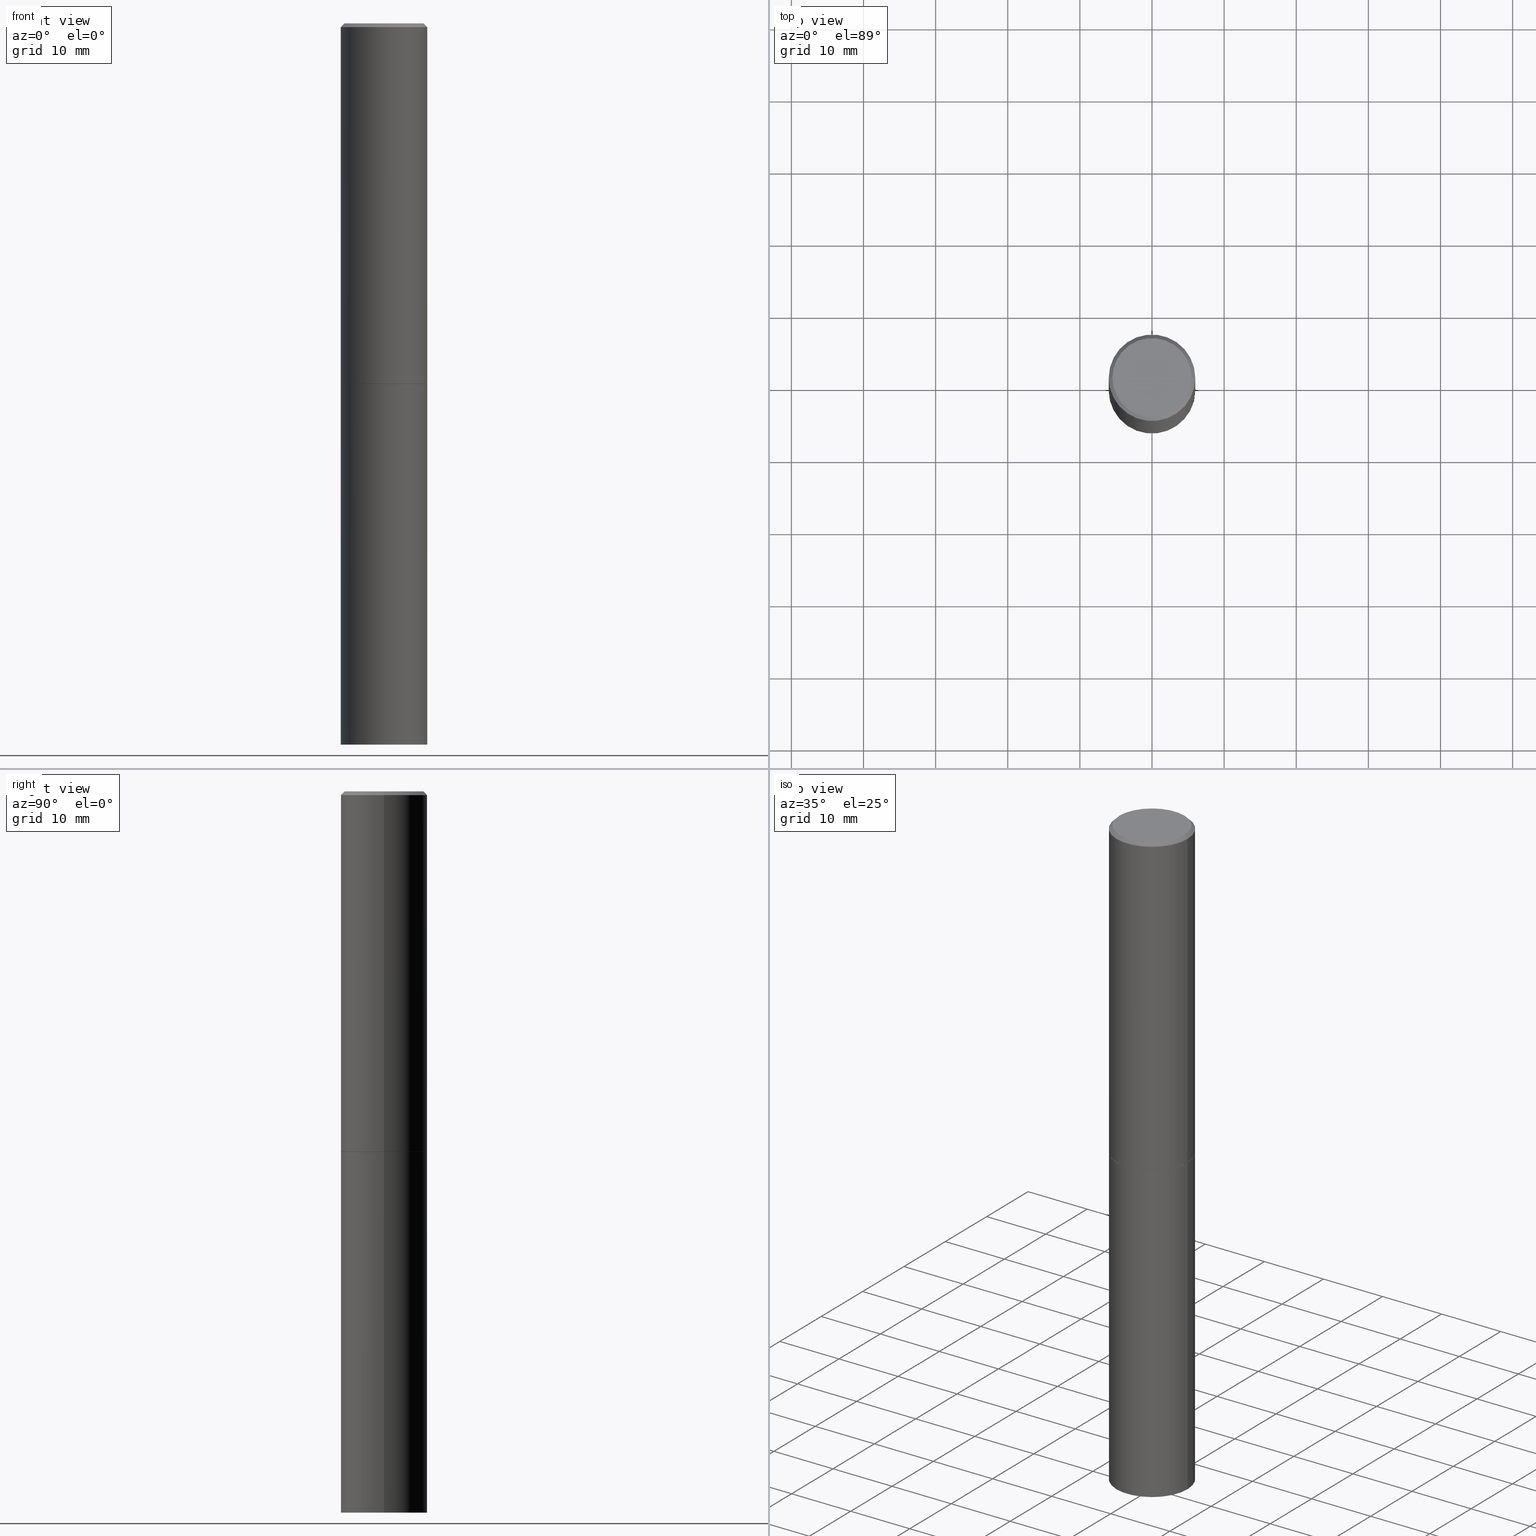
[diagram: canonical four-view strip — front | top / right | iso, engineering-drawing reading convention]
A machine part, canonical four-view strip (front | top / right | iso — engineering-drawing reading convention). The complete STEP part file that produces these views, byte-faithful:
ISO-10303-21;
HEADER;
FILE_DESCRIPTION (( 'STEP AP203' ),
    '1' );
FILE_NAME ('49433.STEP',
    '2024-02-28T20:46:06',
    ( '' ),
    ( '' ),
    'SwSTEP 2.0',
    'SolidWorks 2023',
    '' );
FILE_SCHEMA (( 'CONFIG_CONTROL_DESIGN' ));
ENDSEC;

DATA;
#1 = EDGE_LOOP ( 'NONE', ( #299, #39, #294, #66 ) ) ;
#2 = CLOSED_SHELL ( 'NONE', ( #72, #366, #238, #206, #120, #87, #78, #269 ) ) ;
#3 = PERSON_AND_ORGANIZATION_ROLE ( 'design_owner' ) ;
#4 = CC_DESIGN_APPROVAL ( #278, ( #134 ) ) ;
#5 = LOCAL_TIME ( 15, 46, 6.000000000000000000, #12 ) ;
#6 = FACE_OUTER_BOUND ( 'NONE', #196, .T. ) ;
#7 = CARTESIAN_POINT ( 'NONE',  ( 4.813905344975441835E-29, -6.872981015512731707E-15, -1.968500000000000139 ) ) ;
#8 =( NAMED_UNIT ( * ) SI_UNIT ( $, .STERADIAN. ) SOLID_ANGLE_UNIT ( ) );
#9 = ORIENTED_EDGE ( 'NONE', *, *, #255, .T. ) ;
#10 = DIRECTION ( 'NONE',  ( 1.000000000000000000, 0.000000000000000000, 0.000000000000000000 ) ) ;
#11 = AXIS2_PLACEMENT_3D ( 'NONE', #192, #164, #10 ) ;
#12 = COORDINATED_UNIVERSAL_TIME_OFFSET ( 5, 0, .BEHIND. ) ;
#13 = VERTEX_POINT ( 'NONE', #242 ) ;
#14 = COORDINATED_UNIVERSAL_TIME_OFFSET ( 5, 0, .BEHIND. ) ;
#15 = EDGE_LOOP ( 'NONE', ( #221, #351, #231, #159 ) ) ;
#16 = LOCAL_TIME ( 15, 46, 6.000000000000000000, #337 ) ;
#17 = CARTESIAN_POINT ( 'NONE',  ( 4.890937612370292426E-31, -6.982962677686317493E-17, -0.02000000000000007674 ) ) ;
#18 = ORIENTED_EDGE ( 'NONE', *, *, #99, .T. ) ;
#19 = DATE_AND_TIME ( #121, #348 ) ;
#20 = CARTESIAN_POINT ( 'NONE',  ( 0.2361999999999999933, -8.518865318643383648E-15, -1.967500000000000027 ) ) ;
#21 = EDGE_LOOP ( 'NONE', ( #9, #143 ) ) ;
#22 =( GEOMETRIC_REPRESENTATION_CONTEXT ( 3 ) GLOBAL_UNCERTAINTY_ASSIGNED_CONTEXT ( ( #33 ) ) GLOBAL_UNIT_ASSIGNED_CONTEXT ( ( #137, #139, #8 ) ) REPRESENTATION_CONTEXT ( 'NONE', 'WORKASPACE' ) );
#23 = PRODUCT_DEFINITION ( 'UNKNOWN', '', #290, #364 ) ;
#24 = DIRECTION ( 'NONE',  ( 0.7071067811865232589, -2.468850131082003836E-15, 0.7071067811865715536 ) ) ;
#25 = DIRECTION ( 'NONE',  ( 2.445468806185136597E-29, -3.491481338843145583E-15, -1.000000000000000000 ) ) ;
#26 = CLOSED_SHELL ( 'NONE', ( #55, #198, #321, #144 ) ) ;
#27 = LINE ( 'NONE', #359, #327 ) ;
#28 = ORIENTED_EDGE ( 'NONE', *, *, #288, .F. ) ;
#29 = CONICAL_SURFACE ( 'NONE', #296, 0.2351999999999999924, 0.7853981633974141952 ) ;
#30 = COORDINATED_UNIVERSAL_TIME_OFFSET ( 5, 0, .BEHIND. ) ;
#31 = VECTOR ( 'NONE', #276, 39.37007874015748143 ) ;
#32 = DIRECTION ( 'NONE',  ( -2.445468806185136597E-29, 3.491481338843145583E-15, 1.000000000000000000 ) ) ;
#33 = UNCERTAINTY_MEASURE_WITH_UNIT (LENGTH_MEASURE( 1.000000000000000082E-05 ), #137, 'distance_accuracy_value', 'NONE');
#34 = CYLINDRICAL_SURFACE ( 'NONE', #153, 0.2361999999999998545 ) ;
#35 = CARTESIAN_POINT ( 'NONE',  ( 4.813905344975441835E-29, -6.872981015512731707E-15, -1.968500000000000139 ) ) ;
#36 = DIRECTION ( 'NONE',  ( 1.000000000000000000, -6.982962677686266711E-15, 4.876176775795935793E-29 ) ) ;
#37 = DIRECTION ( 'NONE',  ( -2.445468806185136597E-29, 3.491481338843145583E-15, 1.000000000000000000 ) ) ;
#38 = APPROVAL_PERSON_ORGANIZATION ( #195, #278, #88 ) ;
#39 = ORIENTED_EDGE ( 'NONE', *, *, #332, .T. ) ;
#40 = PERSON_AND_ORGANIZATION ( #219, #109 ) ;
#41 = DIRECTION ( 'NONE',  ( -0.7071067811865465735, 2.468850131082246805E-15, -0.7071067811865484609 ) ) ;
#42 = CC_DESIGN_DATE_AND_TIME_ASSIGNMENT ( #19, #344, ( #134 ) ) ;
#43 = CIRCLE ( 'NONE', #201, 0.2361999999999997712 ) ;
#44 = EDGE_LOOP ( 'NONE', ( #94, #267, #251, #71 ) ) ;
#45 = ORIENTED_EDGE ( 'NONE', *, *, #177, .F. ) ;
#46 = EDGE_CURVE ( 'NONE', #175, #111, #209, .T. ) ;
#47 = CARTESIAN_POINT ( 'NONE',  ( 0.2361999999999999933, -1.539533781549495994E-14, -3.937000000000000277 ) ) ;
#48 = AXIS2_PLACEMENT_3D ( 'NONE', #35, #277, #220 ) ;
#49 = CARTESIAN_POINT ( 'NONE',  ( 4.890937612370292426E-31, -6.982962677686317493E-17, -0.02000000000000007674 ) ) ;
#50 = LINE ( 'NONE', #323, #70 ) ;
#51 = PLANE ( 'NONE',  #318 ) ;
#52 = PRODUCT_RELATED_PRODUCT_CATEGORY ( 'detail', '', ( #168 ) ) ;
#53 = DIRECTION ( 'NONE',  ( 2.438088387897960049E-29, -3.491481338843145188E-15, -1.000000000000000000 ) ) ;
#54 = DIRECTION ( 'NONE',  ( 1.000000000000000000, -6.982962677686265922E-15, 4.876176775795935793E-29 ) ) ;
#55 = ADVANCED_FACE ( 'NONE', ( #6 ), #187, .T. ) ;
#56 = CARTESIAN_POINT ( 'NONE',  ( 4.811459876169256232E-29, -6.869489534173888700E-15, -1.967500000000000027 ) ) ;
#57 = CARTESIAN_POINT ( 'NONE',  ( 0.000000000000000000, 0.000000000000000000, 0.000000000000000000 ) ) ;
#58 = DATE_TIME_ROLE ( 'creation_date' ) ;
#59 = CALENDAR_DATE ( 2024, 28, 2 ) ;
#60 = DIRECTION ( 'NONE',  ( -2.445468806185136597E-29, 3.491481338843145583E-15, 1.000000000000000000 ) ) ;
#61 = CALENDAR_DATE ( 2024, 28, 2 ) ;
#62 = CONICAL_SURFACE ( 'NONE', #123, 0.2361999999999997712, 0.7853981633974469467 ) ;
#63 = ADVANCED_BREP_SHAPE_REPRESENTATION ( '49433', ( #157, #150, #11 ), #22 ) ;
#64 = EDGE_CURVE ( 'NONE', #333, #152, #217, .T. ) ;
#65 = DIRECTION ( 'NONE',  ( -2.445468806185136597E-29, 3.491481338843145583E-15, 1.000000000000000000 ) ) ;
#66 = ORIENTED_EDGE ( 'NONE', *, *, #218, .F. ) ;
#67 = SECURITY_CLASSIFICATION_LEVEL ( 'unclassified' ) ;
#68 = AXIS2_PLACEMENT_3D ( 'NONE', #202, #347, #194 ) ;
#69 = ORIENTED_EDGE ( 'NONE', *, *, #80, .T. ) ;
#70 = VECTOR ( 'NONE', #156, 39.37007874015748854 ) ;
#71 = ORIENTED_EDGE ( 'NONE', *, *, #46, .F. ) ;
#72 = ADVANCED_FACE ( 'NONE', ( #334 ), #233, .T. ) ;
#73 = CARTESIAN_POINT ( 'NONE',  ( 0.2161999999999997257, -1.586759460484350213E-15, 4.268512490111238857E-18 ) ) ;
#74 = ORIENTED_EDGE ( 'NONE', *, *, #107, .T. ) ;
#75 = AXIS2_PLACEMENT_3D ( 'NONE', #289, #363, #235 ) ;
#76 = CARTESIAN_POINT ( 'NONE',  ( 1.649375784469544054E-15, 0.2361999999999931377, -1.968500000000000805 ) ) ;
#77 = DIRECTION ( 'NONE',  ( 2.445468806185136597E-29, -3.491481338843145583E-15, -1.000000000000000000 ) ) ;
#78 = ADVANCED_FACE ( 'NONE', ( #224 ), #193, .F. ) ;
#79 = DIRECTION ( 'NONE',  ( 1.000000000000000000, -6.982962677686269077E-15, 0.000000000000000000 ) ) ;
#80 = EDGE_CURVE ( 'NONE', #111, #175, #257, .T. ) ;
#81 = CARTESIAN_POINT ( 'NONE',  ( 4.813905344975441835E-29, -6.872981015512731707E-15, -1.968500000000000139 ) ) ;
#82 = CARTESIAN_POINT ( 'NONE',  ( 4.813905344975441835E-29, -6.872981015512731707E-15, -1.968500000000000139 ) ) ;
#83 = DIRECTION ( 'NONE',  ( 1.000000000000000000, -6.982962677686265133E-15, 0.000000000000000000 ) ) ;
#84 = AXIS2_PLACEMENT_3D ( 'NONE', #160, #130, #104 ) ;
#85 = DIRECTION ( 'NONE',  ( 1.000000000000000000, -6.982962677686265133E-15, 0.000000000000000000 ) ) ;
#86 = PERSON_AND_ORGANIZATION ( #219, #109 ) ;
#87 = ADVANCED_FACE ( 'NONE', ( #163 ), #29, .T. ) ;
#88 = APPROVAL_ROLE ( '' ) ;
#89 = CARTESIAN_POINT ( 'NONE',  ( 0.000000000000000000, 0.000000000000000000, 0.000000000000000000 ) ) ;
#90 = APPROVAL_DATE_TIME ( #95, #229 ) ;
#91 = AXIS2_PLACEMENT_3D ( 'NONE', #271, #37, #225 ) ;
#92 = CIRCLE ( 'NONE', #84, 0.2361999999999999933 ) ;
#93 = EDGE_CURVE ( 'NONE', #343, #149, #136, .T. ) ;
#94 = ORIENTED_EDGE ( 'NONE', *, *, #332, .F. ) ;
#95 = DATE_AND_TIME ( #280, #5 ) ;
#96 = ORIENTED_EDGE ( 'NONE', *, *, #360, .T. ) ;
#97 = APPLICATION_CONTEXT ( 'configuration controlled 3d designs of mechanical parts and assemblies' ) ;
#98 = DIRECTION ( 'NONE',  ( 1.000000000000000000, -6.982962677686267499E-15, 4.876217060660161841E-29 ) ) ;
#99 = EDGE_CURVE ( 'NONE', #342, #275, #118, .T. ) ;
#100 = DIRECTION ( 'NONE',  ( 1.000000000000000000, -6.982962677686267499E-15, 4.876217060660161841E-29 ) ) ;
#101 = AXIS2_PLACEMENT_3D ( 'NONE', #132, #246, #83 ) ;
#102 = CC_DESIGN_PERSON_AND_ORGANIZATION_ASSIGNMENT ( #86, #3, ( #168 ) ) ;
#103 = CARTESIAN_POINT ( 'NONE',  ( 1.509716530915768746E-15, 0.2161999999999997257, -7.527240092128370190E-16 ) ) ;
#104 = DIRECTION ( 'NONE',  ( 1.000000000000000000, -6.982962677686265133E-15, 0.000000000000000000 ) ) ;
#105 = EDGE_LOOP ( 'NONE', ( #161, #260, #324, #74 ) ) ;
#106 = CALENDAR_DATE ( 2024, 28, 2 ) ;
#107 = EDGE_CURVE ( 'NONE', #13, #152, #304, .T. ) ;
#108 = ORIENTED_EDGE ( 'NONE', *, *, #281, .F. ) ;
#109 = ORGANIZATION ( 'UNSPECIFIED', 'UNSPECIFIED', '' ) ;
#110 = APPLICATION_PROTOCOL_DEFINITION ( 'international standard', 'config_control_design', 1994, #124 ) ;
#111 = VERTEX_POINT ( 'NONE', #20 ) ;
#112 = DIRECTION ( 'NONE',  ( 1.000000000000000000, -6.982962677686266711E-15, 4.876176775795936353E-29 ) ) ;
#113 = APPROVAL_STATUS ( 'not_yet_approved' ) ;
#114 = DIRECTION ( 'NONE',  ( -2.445468806185136877E-29, 3.491481338843145188E-15, 1.000000000000000000 ) ) ;
#115 = CC_DESIGN_PERSON_AND_ORGANIZATION_ASSIGNMENT ( #135, #117, ( #23 ) ) ;
#116 = AXIS2_PLACEMENT_3D ( 'NONE', #172, #65, #350 ) ;
#117 = PERSON_AND_ORGANIZATION_ROLE ( 'creator' ) ;
#118 = LINE ( 'NONE', #338, #261 ) ;
#119 = PERSON_AND_ORGANIZATION ( #219, #109 ) ;
#120 = ADVANCED_FACE ( 'NONE', ( #232 ), #254, .T. ) ;
#121 = CALENDAR_DATE ( 2024, 28, 2 ) ;
#122 = ORIENTED_EDGE ( 'NONE', *, *, #360, .F. ) ;
#123 = AXIS2_PLACEMENT_3D ( 'NONE', #208, #77, #182 ) ;
#124 = APPLICATION_CONTEXT ( 'configuration controlled 3d designs of mechanical parts and assemblies' ) ;
#125 = FACE_OUTER_BOUND ( 'NONE', #197, .T. ) ;
#126 = FACE_OUTER_BOUND ( 'NONE', #21, .T. ) ;
#127 = FACE_OUTER_BOUND ( 'NONE', #284, .T. ) ;
#128 = VECTOR ( 'NONE', #184, 39.37007874015748143 ) ;
#129 = CARTESIAN_POINT ( 'NONE',  ( -1.043851414335219820E-46, 1.490343170380447200E-32, 4.268512490100411279E-18 ) ) ;
#130 = DIRECTION ( 'NONE',  ( -2.445468806185136597E-29, 3.491481338843145583E-15, 1.000000000000000000 ) ) ;
#131 = MECHANICAL_CONTEXT ( 'NONE', #97, 'mechanical' ) ;
#132 = CARTESIAN_POINT ( 'NONE',  ( 4.811459876169256232E-29, -6.869489534173888700E-15, -1.967500000000000027 ) ) ;
#133 = ORIENTED_EDGE ( 'NONE', *, *, #355, .F. ) ;
#134 = SECURITY_CLASSIFICATION ( '', '', #67 ) ;
#135 = PERSON_AND_ORGANIZATION ( #219, #109 ) ;
#136 = LINE ( 'NONE', #138, #140 ) ;
#137 =( CONVERSION_BASED_UNIT ( 'INCH', #270 ) LENGTH_UNIT ( ) NAMED_UNIT ( #141 ) );
#138 = CARTESIAN_POINT ( 'NONE',  ( -0.2361999999999999933, 1.678301941865356591E-15, -1.161852468318208757E-29 ) ) ;
#139 =( NAMED_UNIT ( * ) PLANE_ANGLE_UNIT ( ) SI_UNIT ( $, .RADIAN. ) );
#140 = VECTOR ( 'NONE', #345, 39.37007874015748143 ) ;
#141 = DIMENSIONAL_EXPONENTS ( 1.000000000000000000, 0.000000000000000000, 0.000000000000000000, 0.000000000000000000, 0.000000000000000000, 0.000000000000000000, 0.000000000000000000 ) ;
#142 = AXIS2_PLACEMENT_3D ( 'NONE', #329, #268, #239 ) ;
#143 = ORIENTED_EDGE ( 'NONE', *, *, #326, .T. ) ;
#144 = ADVANCED_FACE ( 'NONE', ( #230 ), #356, .T. ) ;
#145 = CIRCLE ( 'NONE', #116, 0.2361999999999999933 ) ;
#146 = DIRECTION ( 'NONE',  ( 1.000000000000000000, -6.982962677686266711E-15, 4.876176775795935793E-29 ) ) ;
#147 = ORIENTED_EDGE ( 'NONE', *, *, #177, .T. ) ;
#148 = PERSON_AND_ORGANIZATION ( #219, #109 ) ;
#149 = VERTEX_POINT ( 'NONE', #258 ) ;
#150 = MANIFOLD_SOLID_BREP ( 'Body-Move/Copy2[2]', #2 ) ;
#151 = DIRECTION ( 'NONE',  ( -2.445468806185136597E-29, 3.491481338843145583E-15, 1.000000000000000000 ) ) ;
#152 = VERTEX_POINT ( 'NONE', #309 ) ;
#153 = AXIS2_PLACEMENT_3D ( 'NONE', #57, #162, #36 ) ;
#154 = APPROVAL_PERSON_ORGANIZATION ( #148, #229, #173 ) ;
#155 = DIRECTION ( 'NONE',  ( -2.445468806185136597E-29, 3.491481338843145583E-15, 1.000000000000000000 ) ) ;
#156 = DIRECTION ( 'NONE',  ( -0.7071067811865232589, 7.493145998870265808E-15, 0.7071067811865715536 ) ) ;
#157 = MANIFOLD_SOLID_BREP ( 'Body-Move/Copy2[1]', #26 ) ;
#158 = AXIS2_PLACEMENT_3D ( 'NONE', #56, #60, #85 ) ;
#159 = ORIENTED_EDGE ( 'NONE', *, *, #181, .F. ) ;
#160 = CARTESIAN_POINT ( 'NONE',  ( 9.627810689950883669E-29, -1.374596203102546341E-14, -3.937000000000000277 ) ) ;
#161 = ORIENTED_EDGE ( 'NONE', *, *, #64, .F. ) ;
#162 = DIRECTION ( 'NONE',  ( -2.445468806185136597E-29, 3.491481338843145583E-15, 1.000000000000000000 ) ) ;
#163 = FACE_OUTER_BOUND ( 'NONE', #44, .T. ) ;
#164 = DIRECTION ( 'NONE',  ( 0.000000000000000000, 0.000000000000000000, 1.000000000000000000 ) ) ;
#165 = CARTESIAN_POINT ( 'NONE',  ( 0.2361999999999997712, -1.690279253850497193E-15, -0.02000000000000007674 ) ) ;
#166 = CC_DESIGN_PERSON_AND_ORGANIZATION_ASSIGNMENT ( #253, #259, ( #134 ) ) ;
#167 = CARTESIAN_POINT ( 'NONE',  ( -0.2361999999999998545, 1.678301941865355605E-15, -1.161852468318208056E-29 ) ) ;
#168 = PRODUCT ( '49433', '49433', '', ( #131 ) ) ;
#169 = DIRECTION ( 'NONE',  ( 0.7071067811865465735, -7.319954787623252890E-15, -0.7071067811865484609 ) ) ;
#170 = DIRECTION ( 'NONE',  ( 1.000000000000000000, -6.982962677686264344E-15, 0.000000000000000000 ) ) ;
#171 = CIRCLE ( 'NONE', #310, 0.2161999999999997257 ) ;
#172 = CARTESIAN_POINT ( 'NONE',  ( 4.813905344975441835E-29, -6.872981015512731707E-15, -1.968500000000000139 ) ) ;
#173 = APPROVAL_ROLE ( '' ) ;
#174 = LINE ( 'NONE', #283, #361 ) ;
#175 = VERTEX_POINT ( 'NONE', #314 ) ;
#176 = CIRCLE ( 'NONE', #142, 0.2361999999999999933 ) ;
#177 = EDGE_CURVE ( 'NONE', #275, #149, #145, .T. ) ;
#178 = ORIENTED_EDGE ( 'NONE', *, *, #346, .T. ) ;
#179 = ORIENTED_EDGE ( 'NONE', *, *, #93, .F. ) ;
#180 = PLANE ( 'NONE',  #75 ) ;
#181 = EDGE_CURVE ( 'NONE', #365, #13, #174, .T. ) ;
#182 = DIRECTION ( 'NONE',  ( -1.000000000000000000, 6.982962677686266711E-15, 0.000000000000000000 ) ) ;
#183 = CARTESIAN_POINT ( 'NONE',  ( -1.043851414335219820E-46, 1.490343170380447200E-32, 4.268512490100411279E-18 ) ) ;
#184 = DIRECTION ( 'NONE',  ( -2.445468806185136877E-29, 3.491481338843145188E-15, 1.000000000000000000 ) ) ;
#185 = AXIS2_PLACEMENT_3D ( 'NONE', #183, #291, #98 ) ;
#186 = DIRECTION ( 'NONE',  ( -2.445468806185136597E-29, 3.491481338843145583E-15, 1.000000000000000000 ) ) ;
#187 = CYLINDRICAL_SURFACE ( 'NONE', #339, 0.2361999999999999933 ) ;
#188 = LINE ( 'NONE', #167, #31 ) ;
#189 = DIRECTION ( 'NONE',  ( -2.445468806185136597E-29, 3.491481338843145583E-15, 1.000000000000000000 ) ) ;
#190 = EDGE_CURVE ( 'NONE', #152, #13, #43, .T. ) ;
#191 = EDGE_LOOP ( 'NONE', ( #69, #96, #226, #108 ) ) ;
#192 = CARTESIAN_POINT ( 'NONE',  ( 0.000000000000000000, 0.000000000000000000, 0.000000000000000000 ) ) ;
#193 = PLANE ( 'NONE',  #244 ) ;
#194 = DIRECTION ( 'NONE',  ( 1.000000000000000000, -6.982962677686266711E-15, 4.876176775795936353E-29 ) ) ;
#195 = PERSON_AND_ORGANIZATION ( #219, #109 ) ;
#196 = EDGE_LOOP ( 'NONE', ( #204, #240, #45, #303 ) ) ;
#197 = EDGE_LOOP ( 'NONE', ( #315, #28 ) ) ;
#198 = ADVANCED_FACE ( 'NONE', ( #125 ), #180, .T. ) ;
#199 = VERTEX_POINT ( 'NONE', #205 ) ;
#200 = PERSON_AND_ORGANIZATION_ROLE ( 'design_supplier' ) ;
#201 = AXIS2_PLACEMENT_3D ( 'NONE', #17, #320, #353 ) ;
#202 = CARTESIAN_POINT ( 'NONE',  ( 0.000000000000000000, 0.000000000000000000, 0.000000000000000000 ) ) ;
#203 = CIRCLE ( 'NONE', #286, 0.2351999999999999924 ) ;
#204 = ORIENTED_EDGE ( 'NONE', *, *, #298, .T. ) ;
#205 = CARTESIAN_POINT ( 'NONE',  ( -0.2351999999999999924, -5.196486046656753130E-15, -1.968500000000000139 ) ) ;
#206 = ADVANCED_FACE ( 'NONE', ( #330 ), #62, .T. ) ;
#207 = DIRECTION ( 'NONE',  ( 1.000000000000000000, -6.982962677686264344E-15, 0.000000000000000000 ) ) ;
#208 = CARTESIAN_POINT ( 'NONE',  ( 4.890937612370292426E-31, -6.982962677686317493E-17, -0.02000000000000007674 ) ) ;
#209 = CIRCLE ( 'NONE', #101, 0.2361999999999999933 ) ;
#210 = LINE ( 'NONE', #362, #128 ) ;
#211 = DIRECTION ( 'NONE',  ( 2.438088387897960049E-29, -3.491481338843145188E-15, -1.000000000000000000 ) ) ;
#212 = CC_DESIGN_PERSON_AND_ORGANIZATION_ASSIGNMENT ( #119, #316, ( #290 ) ) ;
#213 = DATE_AND_TIME ( #106, #16 ) ;
#214 = AXIS2_PLACEMENT_3D ( 'NONE', #89, #151, #146 ) ;
#215 = CIRCLE ( 'NONE', #266, 0.2361999999999999933 ) ;
#216 = CARTESIAN_POINT ( 'NONE',  ( 4.813905344975441835E-29, -6.872981015512731707E-15, -1.968500000000000139 ) ) ;
#217 = LINE ( 'NONE', #165, #248 ) ;
#218 = EDGE_CURVE ( 'NONE', #223, #111, #27, .T. ) ;
#219 = PERSON ( 'UNSPECIFIED', 'UNSPECIFIED', 'UNSPECIFIED', ('UNSPECIFIED'), ('UNSPECIFIED'), ('UNSPECIFIED') ) ;
#220 = DIRECTION ( 'NONE',  ( 1.000000000000000000, -6.982962677686264344E-15, 0.000000000000000000 ) ) ;
#221 = ORIENTED_EDGE ( 'NONE', *, *, #326, .F. ) ;
#222 = FACE_OUTER_BOUND ( 'NONE', #191, .T. ) ;
#223 = VERTEX_POINT ( 'NONE', #325 ) ;
#224 = FACE_OUTER_BOUND ( 'NONE', #252, .T. ) ;
#225 = DIRECTION ( 'NONE',  ( 1.000000000000000000, -6.982962677686266711E-15, 0.000000000000000000 ) ) ;
#226 = ORIENTED_EDGE ( 'NONE', *, *, #190, .F. ) ;
#227 = APPROVAL_DATE_TIME ( #313, #278 ) ;
#228 = EDGE_LOOP ( 'NONE', ( #122, #336, #287, #279 ) ) ;
#229 = APPROVAL ( #352, 'UNSPECIFIED' ) ;
#230 = FACE_OUTER_BOUND ( 'NONE', #317, .T. ) ;
#231 = ORIENTED_EDGE ( 'NONE', *, *, #190, .T. ) ;
#232 = FACE_OUTER_BOUND ( 'NONE', #228, .T. ) ;
#233 = CONICAL_SURFACE ( 'NONE', #48, 0.2351999999999999924, 0.7853981633974141952 ) ;
#234 = CC_DESIGN_APPROVAL ( #229, ( #290 ) ) ;
#235 = DIRECTION ( 'NONE',  ( -1.000000000000000000, 6.982962677686265922E-15, -4.876176775795935793E-29 ) ) ;
#236 = CARTESIAN_POINT ( 'NONE',  ( 0.2361999999999999933, -8.522356799982228232E-15, -1.968500000000000139 ) ) ;
#237 = CC_DESIGN_APPROVAL ( #243, ( #23 ) ) ;
#238 = ADVANCED_FACE ( 'NONE', ( #263 ), #285, .T. ) ;
#239 = DIRECTION ( 'NONE',  ( 1.000000000000000000, -6.982962677686265133E-15, 0.000000000000000000 ) ) ;
#240 = ORIENTED_EDGE ( 'NONE', *, *, #93, .T. ) ;
#241 =( LENGTH_UNIT ( ) NAMED_UNIT ( * ) SI_UNIT ( $, .METRE. ) );
#242 = CARTESIAN_POINT ( 'NONE',  ( -0.2361999999999997712, 1.579546157692631452E-15, -0.02000000000000007674 ) ) ;
#243 = APPROVAL ( #113, 'UNSPECIFIED' ) ;
#244 = AXIS2_PLACEMENT_3D ( 'NONE', #82, #247, #54 ) ;
#245 = CIRCLE ( 'NONE', #185, 0.2161999999999997257 ) ;
#246 = DIRECTION ( 'NONE',  ( -2.445468806185136597E-29, 3.491481338843145583E-15, 1.000000000000000000 ) ) ;
#247 = DIRECTION ( 'NONE',  ( -2.438088387897960049E-29, 3.491481338843145188E-15, 1.000000000000000000 ) ) ;
#248 = VECTOR ( 'NONE', #169, 39.37007874015748143 ) ;
#249 = AXIS2_PLACEMENT_3D ( 'NONE', #76, #211, #358 ) ;
#250 = CC_DESIGN_PERSON_AND_ORGANIZATION_ASSIGNMENT ( #40, #200, ( #290 ) ) ;
#251 = ORIENTED_EDGE ( 'NONE', *, *, #218, .T. ) ;
#252 = EDGE_LOOP ( 'NONE', ( #322, #133 ) ) ;
#253 = PERSON_AND_ORGANIZATION ( #219, #109 ) ;
#254 = CYLINDRICAL_SURFACE ( 'NONE', #214, 0.2361999999999998545 ) ;
#255 = EDGE_CURVE ( 'NONE', #365, #333, #171, .T. ) ;
#256 = ORIENTED_EDGE ( 'NONE', *, *, #346, .F. ) ;
#257 = CIRCLE ( 'NONE', #158, 0.2361999999999999933 ) ;
#258 = CARTESIAN_POINT ( 'NONE',  ( -0.2361999999999999933, -8.631169581403741167E-15, -1.968500000000000139 ) ) ;
#259 = PERSON_AND_ORGANIZATION_ROLE ( 'classification_officer' ) ;
#260 = ORIENTED_EDGE ( 'NONE', *, *, #255, .F. ) ;
#261 = VECTOR ( 'NONE', #114, 39.37007874015748143 ) ;
#262 = CARTESIAN_POINT ( 'NONE',  ( 4.813905344975441835E-29, -6.872981015512731707E-15, -1.968500000000000139 ) ) ;
#263 = FACE_OUTER_BOUND ( 'NONE', #15, .T. ) ;
#264 = PLANE ( 'NONE',  #249 ) ;
#265 = AXIS2_PLACEMENT_3D ( 'NONE', #49, #25, #295 ) ;
#266 = AXIS2_PLACEMENT_3D ( 'NONE', #216, #274, #79 ) ;
#267 = ORIENTED_EDGE ( 'NONE', *, *, #355, .T. ) ;
#268 = DIRECTION ( 'NONE',  ( -2.445468806185136597E-29, 3.491481338843145583E-15, 1.000000000000000000 ) ) ;
#269 = ADVANCED_FACE ( 'NONE', ( #126 ), #51, .F. ) ;
#270 = LENGTH_MEASURE_WITH_UNIT ( LENGTH_MEASURE( 0.02539999999999999897 ), #241 );
#271 = CARTESIAN_POINT ( 'NONE',  ( 4.890937612370292426E-31, -6.982962677686317493E-17, -0.02000000000000007674 ) ) ;
#272 = APPROVAL_ROLE ( '' ) ;
#273 = CC_DESIGN_SECURITY_CLASSIFICATION ( #134, ( #290 ) ) ;
#274 = DIRECTION ( 'NONE',  ( -2.445468806185136597E-29, 3.491481338843145583E-15, 1.000000000000000000 ) ) ;
#275 = VERTEX_POINT ( 'NONE', #236 ) ;
#276 = DIRECTION ( 'NONE',  ( -2.445468806185136877E-29, 3.491481338843145188E-15, 1.000000000000000000 ) ) ;
#277 = DIRECTION ( 'NONE',  ( -2.445468806185136597E-29, 3.491481338843145583E-15, 1.000000000000000000 ) ) ;
#278 = APPROVAL ( #282, 'UNSPECIFIED' ) ;
#279 = ORIENTED_EDGE ( 'NONE', *, *, #107, .F. ) ;
#280 = CALENDAR_DATE ( 2024, 28, 2 ) ;
#281 = EDGE_CURVE ( 'NONE', #111, #152, #210, .T. ) ;
#282 = APPROVAL_STATUS ( 'not_yet_approved' ) ;
#283 = CARTESIAN_POINT ( 'NONE',  ( -0.2361999999999997712, 1.579546157692631452E-15, -0.02000000000000007674 ) ) ;
#284 = EDGE_LOOP ( 'NONE', ( #147, #178 ) ) ;
#285 = CONICAL_SURFACE ( 'NONE', #265, 0.2361999999999997712, 0.7853981633974469467 ) ;
#286 = AXIS2_PLACEMENT_3D ( 'NONE', #262, #155, #207 ) ;
#287 = ORIENTED_EDGE ( 'NONE', *, *, #281, .T. ) ;
#288 = EDGE_CURVE ( 'NONE', #343, #342, #176, .T. ) ;
#289 = CARTESIAN_POINT ( 'NONE',  ( 1.649375784469592175E-15, 0.2361999999999862265, -3.937000000000001165 ) ) ;
#290 = PRODUCT_DEFINITION_FORMATION_WITH_SPECIFIED_SOURCE ( 'ANY', '', #168, .NOT_KNOWN. ) ;
#291 = DIRECTION ( 'NONE',  ( -2.445468806185136597E-29, 3.491481338843145583E-15, 1.000000000000000000 ) ) ;
#292 = CC_DESIGN_DATE_AND_TIME_ASSIGNMENT ( #213, #58, ( #23 ) ) ;
#293 = DIRECTION ( 'NONE',  ( -2.445468806185136597E-29, 3.491481338843145583E-15, 1.000000000000000000 ) ) ;
#294 = ORIENTED_EDGE ( 'NONE', *, *, #80, .F. ) ;
#295 = DIRECTION ( 'NONE',  ( -1.000000000000000000, 6.982962677686266711E-15, 0.000000000000000000 ) ) ;
#296 = AXIS2_PLACEMENT_3D ( 'NONE', #7, #32, #170 ) ;
#297 = LOCAL_TIME ( 15, 46, 6.000000000000000000, #308 ) ;
#298 = EDGE_CURVE ( 'NONE', #342, #343, #92, .T. ) ;
#299 = ORIENTED_EDGE ( 'NONE', *, *, #312, .T. ) ;
#300 = CARTESIAN_POINT ( 'NONE',  ( -0.2161999999999997257, 1.544631344304200197E-15, 4.268512490089730842E-18 ) ) ;
#301 = DIRECTION ( 'NONE',  ( 1.000000000000000000, -6.982962677686264344E-15, 0.000000000000000000 ) ) ;
#302 = CARTESIAN_POINT ( 'NONE',  ( -0.2361999999999999933, -8.631169581403741167E-15, -3.937000000000000277 ) ) ;
#303 = ORIENTED_EDGE ( 'NONE', *, *, #99, .F. ) ;
#304 = CIRCLE ( 'NONE', #91, 0.2361999999999997712 ) ;
#305 = DATE_AND_TIME ( #59, #340 ) ;
#306 = APPROVAL_DATE_TIME ( #305, #243 ) ;
#307 = CARTESIAN_POINT ( 'NONE',  ( 0.000000000000000000, 0.000000000000000000, 0.000000000000000000 ) ) ;
#308 = COORDINATED_UNIVERSAL_TIME_OFFSET ( 5, 0, .BEHIND. ) ;
#309 = CARTESIAN_POINT ( 'NONE',  ( 0.2361999999999997712, -1.690279253850497193E-15, -0.02000000000000007674 ) ) ;
#310 = AXIS2_PLACEMENT_3D ( 'NONE', #129, #293, #100 ) ;
#311 = APPROVAL_PERSON_ORGANIZATION ( #331, #243, #272 ) ;
#312 = EDGE_CURVE ( 'NONE', #223, #199, #203, .T. ) ;
#313 = DATE_AND_TIME ( #61, #297 ) ;
#314 = CARTESIAN_POINT ( 'NONE',  ( -0.2362000000000000210, -1.791357638610017633E-15, -1.967500000000000027 ) ) ;
#315 = ORIENTED_EDGE ( 'NONE', *, *, #298, .F. ) ;
#316 = PERSON_AND_ORGANIZATION_ROLE ( 'creator' ) ;
#317 = EDGE_LOOP ( 'NONE', ( #179, #354, #18, #256 ) ) ;
#318 = AXIS2_PLACEMENT_3D ( 'NONE', #103, #53, #328 ) ;
#319 = CIRCLE ( 'NONE', #357, 0.2351999999999999924 ) ;
#320 = DIRECTION ( 'NONE',  ( -2.445468806185136597E-29, 3.491481338843145583E-15, 1.000000000000000000 ) ) ;
#321 = ADVANCED_FACE ( 'NONE', ( #127 ), #264, .F. ) ;
#322 = ORIENTED_EDGE ( 'NONE', *, *, #312, .F. ) ;
#323 = CARTESIAN_POINT ( 'NONE',  ( -0.2351999999999999924, -5.201784501004976321E-15, -1.968500000000000139 ) ) ;
#324 = ORIENTED_EDGE ( 'NONE', *, *, #181, .T. ) ;
#325 = CARTESIAN_POINT ( 'NONE',  ( 0.2351999999999999924, -8.515373837304542218E-15, -1.968500000000000139 ) ) ;
#326 = EDGE_CURVE ( 'NONE', #333, #365, #245, .T. ) ;
#327 = VECTOR ( 'NONE', #24, 39.37007874015748854 ) ;
#328 = DIRECTION ( 'NONE',  ( -1.000000000000000000, 6.982962677686265922E-15, -4.876176775795935793E-29 ) ) ;
#329 = CARTESIAN_POINT ( 'NONE',  ( 9.627810689950883669E-29, -1.374596203102546341E-14, -3.937000000000000277 ) ) ;
#330 = FACE_OUTER_BOUND ( 'NONE', #105, .T. ) ;
#331 = PERSON_AND_ORGANIZATION ( #219, #109 ) ;
#332 = EDGE_CURVE ( 'NONE', #199, #175, #50, .T. ) ;
#333 = VERTEX_POINT ( 'NONE', #73 ) ;
#334 = FACE_OUTER_BOUND ( 'NONE', #1, .T. ) ;
#335 = PRODUCT_DEFINITION_SHAPE ( 'NONE', 'NONE',  #23 ) ;
#336 = ORIENTED_EDGE ( 'NONE', *, *, #46, .T. ) ;
#337 = COORDINATED_UNIVERSAL_TIME_OFFSET ( 5, 0, .BEHIND. ) ;
#338 = CARTESIAN_POINT ( 'NONE',  ( 0.2361999999999999933, -1.649375784469496131E-15, 1.151752954443000088E-29 ) ) ;
#339 = AXIS2_PLACEMENT_3D ( 'NONE', #307, #189, #112 ) ;
#340 = LOCAL_TIME ( 15, 46, 6.000000000000000000, #30 ) ;
#341 = APPLICATION_PROTOCOL_DEFINITION ( 'international standard', 'config_control_design', 1994, #97 ) ;
#342 = VERTEX_POINT ( 'NONE', #47 ) ;
#343 = VERTEX_POINT ( 'NONE', #302 ) ;
#344 = DATE_TIME_ROLE ( 'classification_date' ) ;
#345 = DIRECTION ( 'NONE',  ( -2.445468806185136877E-29, 3.491481338843145188E-15, 1.000000000000000000 ) ) ;
#346 = EDGE_CURVE ( 'NONE', #149, #275, #215, .T. ) ;
#347 = DIRECTION ( 'NONE',  ( -2.445468806185136597E-29, 3.491481338843145583E-15, 1.000000000000000000 ) ) ;
#348 = LOCAL_TIME ( 15, 46, 6.000000000000000000, #14 ) ;
#349 = SHAPE_DEFINITION_REPRESENTATION ( #335, #63 ) ;
#350 = DIRECTION ( 'NONE',  ( 1.000000000000000000, -6.982962677686269077E-15, 0.000000000000000000 ) ) ;
#351 = ORIENTED_EDGE ( 'NONE', *, *, #64, .T. ) ;
#352 = APPROVAL_STATUS ( 'not_yet_approved' ) ;
#353 = DIRECTION ( 'NONE',  ( 1.000000000000000000, -6.982962677686266711E-15, 0.000000000000000000 ) ) ;
#354 = ORIENTED_EDGE ( 'NONE', *, *, #288, .T. ) ;
#355 = EDGE_CURVE ( 'NONE', #199, #223, #319, .T. ) ;
#356 = CYLINDRICAL_SURFACE ( 'NONE', #68, 0.2361999999999999933 ) ;
#357 = AXIS2_PLACEMENT_3D ( 'NONE', #81, #186, #301 ) ;
#358 = DIRECTION ( 'NONE',  ( -1.000000000000000000, 6.982962677686265922E-15, -4.876176775795935793E-29 ) ) ;
#359 = CARTESIAN_POINT ( 'NONE',  ( 0.2351999999999999924, -8.515373837304542218E-15, -1.968500000000000139 ) ) ;
#360 = EDGE_CURVE ( 'NONE', #175, #13, #188, .T. ) ;
#361 = VECTOR ( 'NONE', #41, 39.37007874015748143 ) ;
#362 = CARTESIAN_POINT ( 'NONE',  ( 0.2361999999999998545, -1.649375784469495145E-15, 1.151752954442999387E-29 ) ) ;
#363 = DIRECTION ( 'NONE',  ( 2.438088387897960049E-29, -3.491481338843145188E-15, -1.000000000000000000 ) ) ;
#364 = DESIGN_CONTEXT ( 'detailed design', #124, 'design' ) ;
#365 = VERTEX_POINT ( 'NONE', #300 ) ;
#366 = ADVANCED_FACE ( 'NONE', ( #222 ), #34, .T. ) ;
ENDSEC;
END-ISO-10303-21;
